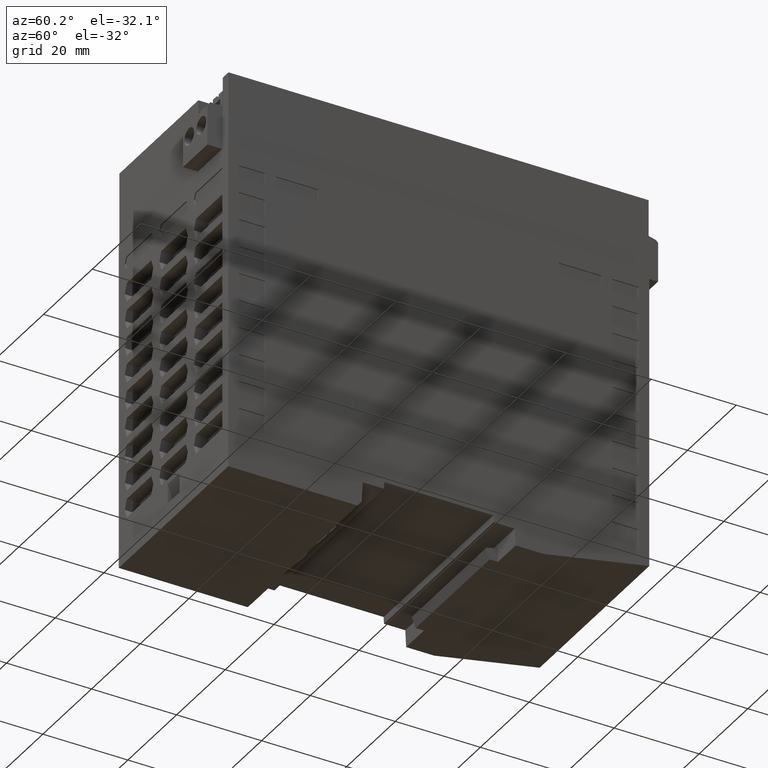
[diagram: clean part render]
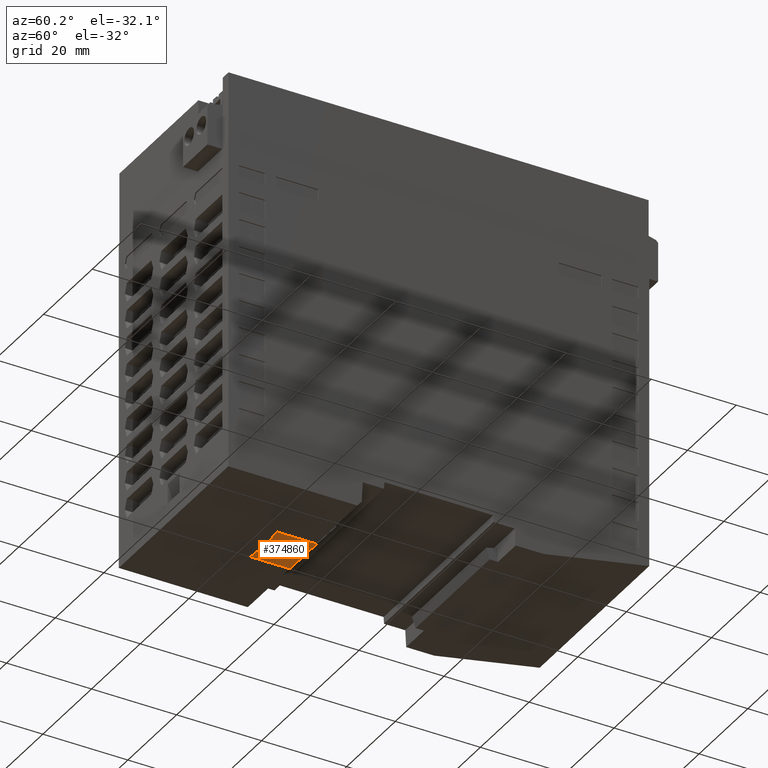
[diagram: same view with one face highlighted and labeled with its STEP entity id]
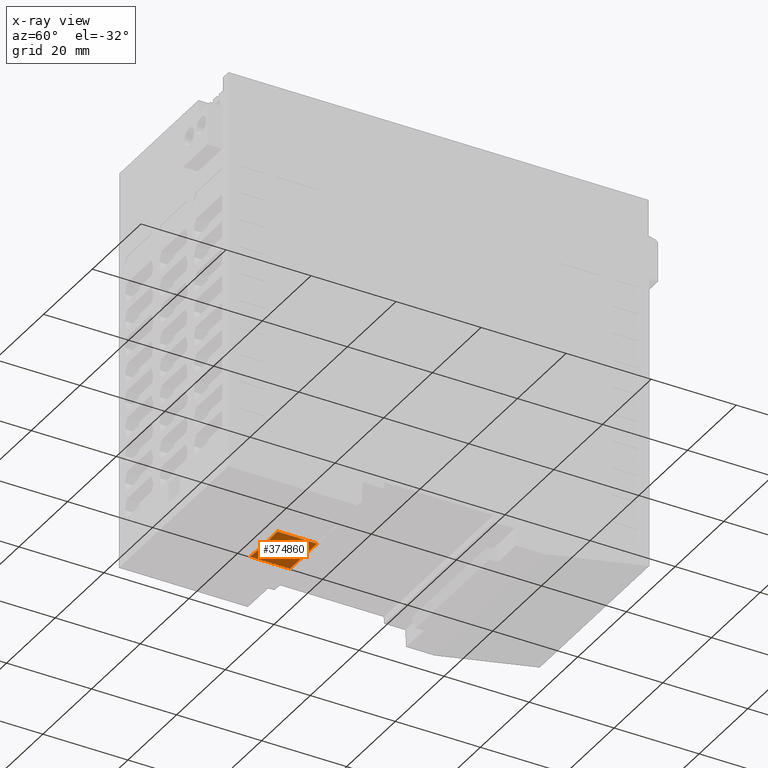
[diagram: x-ray of the same camera — body ghosted, the highlighted face saturated]
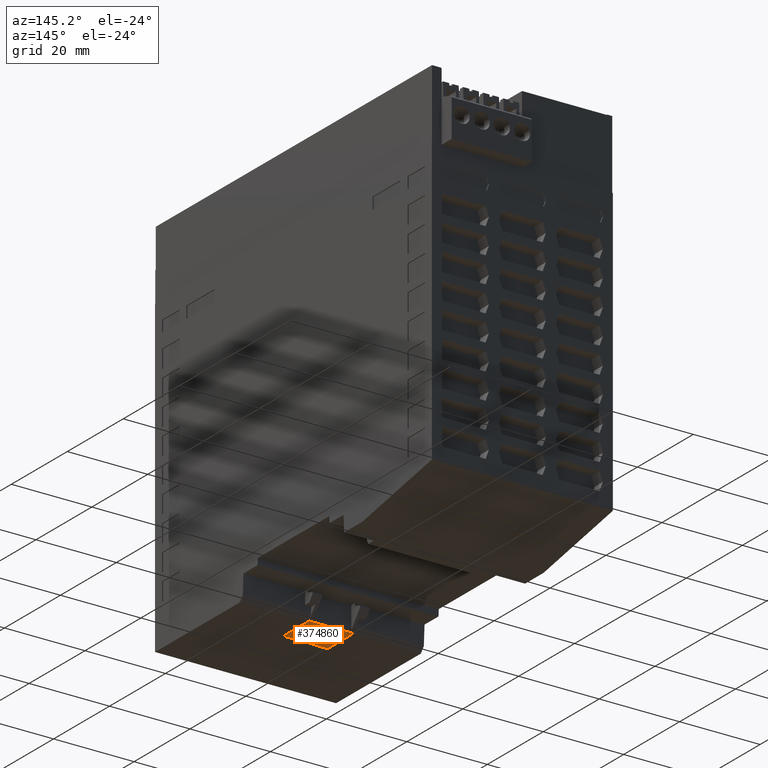
[diagram: same view with one face highlighted and labeled with its STEP entity id]
A machine part, auxiliary view. The second image highlights one B-rep face of the part: STEP entity #374860.
The next image is the same camera in x-ray: the body ghosted, the highlighted face saturated — about 0% of this face is hidden behind the body in this view.
A second angle (auxiliary view) of the same face is appended — the face is thin or edge-on in the first view.
In plain terms, the highlighted planar face has unit normal (0, -0, -1).
Its self-contained STEP definition (entity closure, byte-faithful):
#369610=CARTESIAN_POINT('',(12.0516606069762,-5.89999999999995,
-19.1143891594393));
#369620=VERTEX_POINT('',#369610);
#370370=CARTESIAN_POINT('',(12.0516606069762,-5.89999999999996,
-18.916147553146));
#370380=VERTEX_POINT('',#370370);
#370440=CARTESIAN_POINT('',(12.0516606069762,-5.89999999999996,0.));
#370450=DIRECTION('',(1.38777878078145E-16,0.,-1.));
#370460=VECTOR('',#370450,1.);
#370470=LINE('',#370440,#370460);
#370480=EDGE_CURVE('',#370380,#369620,#370470,.T.);
#373000=CARTESIAN_POINT('',(0.949408970574239,-5.89999999999996,
-19.0886808010837));
#373010=VERTEX_POINT('',#373000);
#373350=CARTESIAN_POINT('',(0.949408970574238,-5.89999999999996,
-18.916147553146));
#373360=VERTEX_POINT('',#373350);
#373390=CARTESIAN_POINT('',(0.949408970574236,-5.89999999999996,0.));
#373400=DIRECTION('',(1.38777878078145E-16,0.,-1.));
#373410=VECTOR('',#373400,1.);
#373420=LINE('',#373390,#373410);
#373430=EDGE_CURVE('',#373360,#373010,#373420,.T.);
#373710=CARTESIAN_POINT('',(0.,-5.89999999999996,-18.916147553146));
#373720=DIRECTION('',(-1.,-0.,-1.38777878078145E-16));
#373730=VECTOR('',#373720,1.);
#373740=LINE('',#373710,#373730);
#373750=EDGE_CURVE('',#370380,#373360,#373740,.T.);
#373930=CARTESIAN_POINT('',(12.0516606069762,-5.89999999999996,
-28.2871271974952));
#373940=VERTEX_POINT('',#373930);
#373970=EDGE_CURVE('',#369620,#373940,#370470,.T.);
#374180=CARTESIAN_POINT('',(0.94940897057424,-5.89999999999996,
-28.2871271974932));
#374190=VERTEX_POINT('',#374180);
#374220=CARTESIAN_POINT('',(0.,-5.89999999999996,-28.3362345580401));
#374230=DIRECTION('',(-0.998664984942109,-0.,-0.0516550854280406));
#374240=VECTOR('',#374230,1.);
#374250=LINE('',#374220,#374240);
#374260=CARTESIAN_POINT('',(6.50053478875554,-5.89999999999996,
-28.000000000001));
#374270=VERTEX_POINT('',#374260);
#374280=EDGE_CURVE('',#374270,#374190,#374250,.T.);
#374530=CARTESIAN_POINT('',(0.,-5.89999999999996,-27.663765441962));
#374540=DIRECTION('',(-0.998664984942109,0.,0.0516550854280403));
#374550=VECTOR('',#374540,1.);
#374560=LINE('',#374530,#374550);
#374570=EDGE_CURVE('',#373940,#374270,#374560,.T.);
#374710=CARTESIAN_POINT('',(17.75,-5.89999999999996,-19.5271835011993));
#374720=DIRECTION('',(0.,-1.,0.));
#374730=DIRECTION('',(1.,0.,0.));
#374740=AXIS2_PLACEMENT_3D('',#374710,#374720,#374730);
#374750=PLANE('',#374740);
#374760=ORIENTED_EDGE('',*,*,#373750,.T.);
#374770=ORIENTED_EDGE('',*,*,#370480,.F.);
#374780=ORIENTED_EDGE('',*,*,#373970,.F.);
#374790=ORIENTED_EDGE('',*,*,#374570,.F.);
#374800=ORIENTED_EDGE('',*,*,#374280,.F.);
#374810=EDGE_CURVE('',#373010,#374190,#373420,.T.);
#374820=ORIENTED_EDGE('',*,*,#374810,.T.);
#374830=ORIENTED_EDGE('',*,*,#373430,.T.);
#374840=EDGE_LOOP('',(#374830,#374820,#374800,#374790,#374780,#374770,
#374760));
#374850=FACE_OUTER_BOUND('',#374840,.T.);
#374860=ADVANCED_FACE('',(#374850),#374750,.T.);